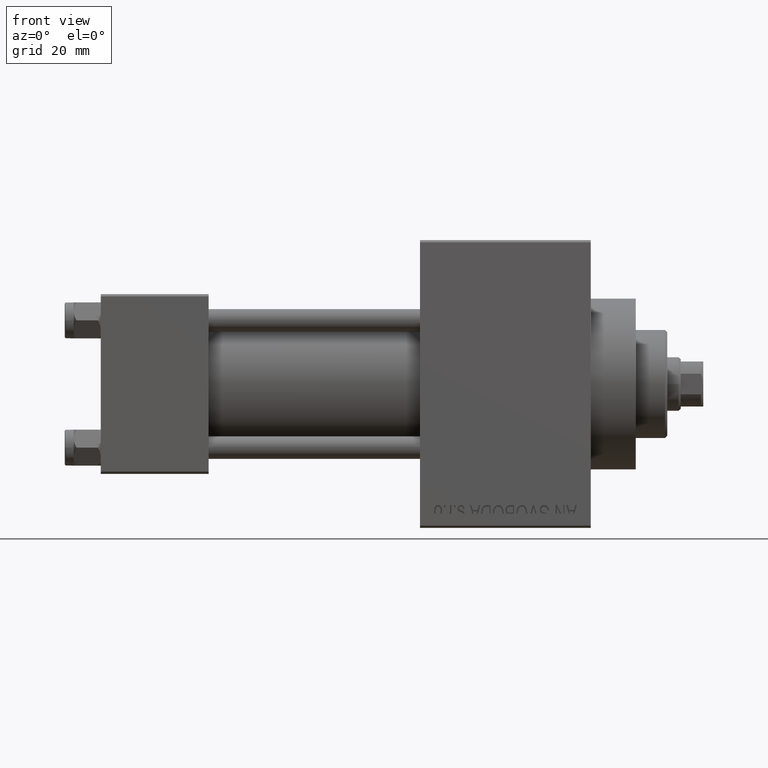
[diagram: clean part render]
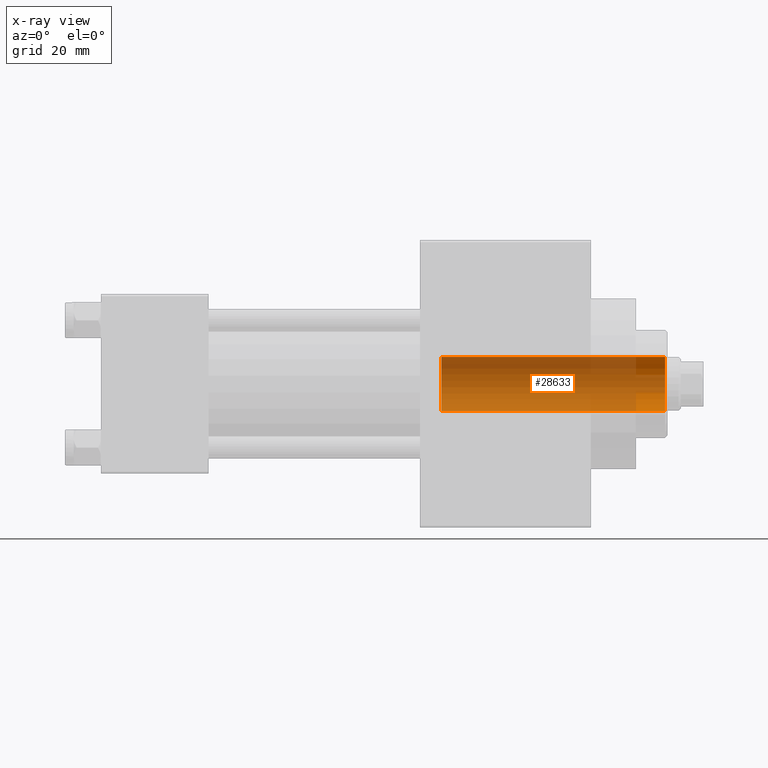
[diagram: x-ray — body ghosted, one internal face saturated and labeled with its STEP entity id]
A machine part, front view, then the same camera in x-ray: the body is ghosted and one INTERNAL B-rep face — a face not visible from any outside direction — is saturated and labeled: STEP entity #28633.
In plain terms, the highlighted cylindrical surface (edge-blend (fillet) strip) has radius 6 mm, axis along (1, -0, -0).
Its self-contained STEP definition (entity closure, byte-faithful):
#552 = VERTEX_POINT ( 'NONE', #21802 ) ;
#1179 = LINE ( 'NONE', #35325, #42060 ) ;
#2556 = AXIS2_PLACEMENT_3D ( 'NONE', #10615, #10132, #32914 ) ;
#4966 = CARTESIAN_POINT ( 'NONE',  ( -6.000000000000000888, 7.347880794884120722E-16, 49.75999999999999801 ) ) ;
#6377 = EDGE_CURVE ( 'NONE', #12564, #552, #19560, .T. ) ;
#6508 = ORIENTED_EDGE ( 'NONE', *, *, #32960, .F. ) ;
#7860 = VERTEX_POINT ( 'NONE', #4966 ) ;
#8929 = CARTESIAN_POINT ( 'NONE',  ( -6.000000000000000888, 7.347880794884120722E-16, -16.97056274847713553 ) ) ;
#10132 = DIRECTION ( 'NONE',  ( -0.000000000000000000, -0.000000000000000000, -1.000000000000000000 ) ) ;
#10615 = CARTESIAN_POINT ( 'NONE',  ( 0.000000000000000000, 0.000000000000000000, 49.75999999999999801 ) ) ;
#11222 = CIRCLE ( 'NONE', #2556, 6.000000000000000888 ) ;
#12564 = VERTEX_POINT ( 'NONE', #34477 ) ;
#13157 = CARTESIAN_POINT ( 'NONE',  ( 0.000000000000000000, 0.000000000000000000, -16.97056274847713553 ) ) ;
#15986 = ORIENTED_EDGE ( 'NONE', *, *, #33689, .F. ) ;
#19560 = CIRCLE ( 'NONE', #25768, 6.000000000000000888 ) ;
#20347 = FACE_OUTER_BOUND ( 'NONE', #31719, .T. ) ;
#20438 = ORIENTED_EDGE ( 'NONE', *, *, #6377, .T. ) ;
#20672 = DIRECTION ( 'NONE',  ( 1.000000000000000000, 0.000000000000000000, 0.000000000000000000 ) ) ;
#20815 = VECTOR ( 'NONE', #28960, 1000.000000000000000 ) ;
#21802 = CARTESIAN_POINT ( 'NONE',  ( -6.000000000000000888, 7.347880794884120722E-16, 0.000000000000000000 ) ) ;
#23456 = DIRECTION ( 'NONE',  ( -0.000000000000000000, -0.000000000000000000, 1.000000000000000000 ) ) ;
#23716 = AXIS2_PLACEMENT_3D ( 'NONE', #13157, #28257, #43374 ) ;
#25768 = AXIS2_PLACEMENT_3D ( 'NONE', #30760, #45880, #20672 ) ;
#28257 = DIRECTION ( 'NONE',  ( -0.000000000000000000, -0.000000000000000000, 1.000000000000000000 ) ) ;
#28633 = ADVANCED_FACE ( 'NONE', ( #20347 ), #35444, .F. ) ;
#28960 = DIRECTION ( 'NONE',  ( -0.000000000000000000, -0.000000000000000000, 1.000000000000000000 ) ) ;
#30389 = ORIENTED_EDGE ( 'NONE', *, *, #36643, .T. ) ;
#30760 = CARTESIAN_POINT ( 'NONE',  ( 0.000000000000000000, 0.000000000000000000, 0.000000000000000000 ) ) ;
#31719 = EDGE_LOOP ( 'NONE', ( #20438, #30389, #15986, #6508 ) ) ;
#32099 = VERTEX_POINT ( 'NONE', #42327 ) ;
#32914 = DIRECTION ( 'NONE',  ( 1.000000000000000000, 0.000000000000000000, 0.000000000000000000 ) ) ;
#32960 = EDGE_CURVE ( 'NONE', #12564, #32099, #1179, .T. ) ;
#33689 = EDGE_CURVE ( 'NONE', #32099, #7860, #11222, .T. ) ;
#34477 = CARTESIAN_POINT ( 'NONE',  ( 6.000000000000000888, 0.000000000000000000, 0.000000000000000000 ) ) ;
#35325 = CARTESIAN_POINT ( 'NONE',  ( 6.000000000000000888, 0.000000000000000000, -16.97056274847713553 ) ) ;
#35444 = CYLINDRICAL_SURFACE ( 'NONE', #23716, 6.000000000000000888 ) ;
#36643 = EDGE_CURVE ( 'NONE', #552, #7860, #42858, .T. ) ;
#42060 = VECTOR ( 'NONE', #23456, 1000.000000000000000 ) ;
#42327 = CARTESIAN_POINT ( 'NONE',  ( 6.000000000000000888, 0.000000000000000000, 49.75999999999999801 ) ) ;
#42858 = LINE ( 'NONE', #8929, #20815 ) ;
#43374 = DIRECTION ( 'NONE',  ( 1.000000000000000000, 0.000000000000000000, 0.000000000000000000 ) ) ;
#45880 = DIRECTION ( 'NONE',  ( -0.000000000000000000, -0.000000000000000000, -1.000000000000000000 ) ) ;